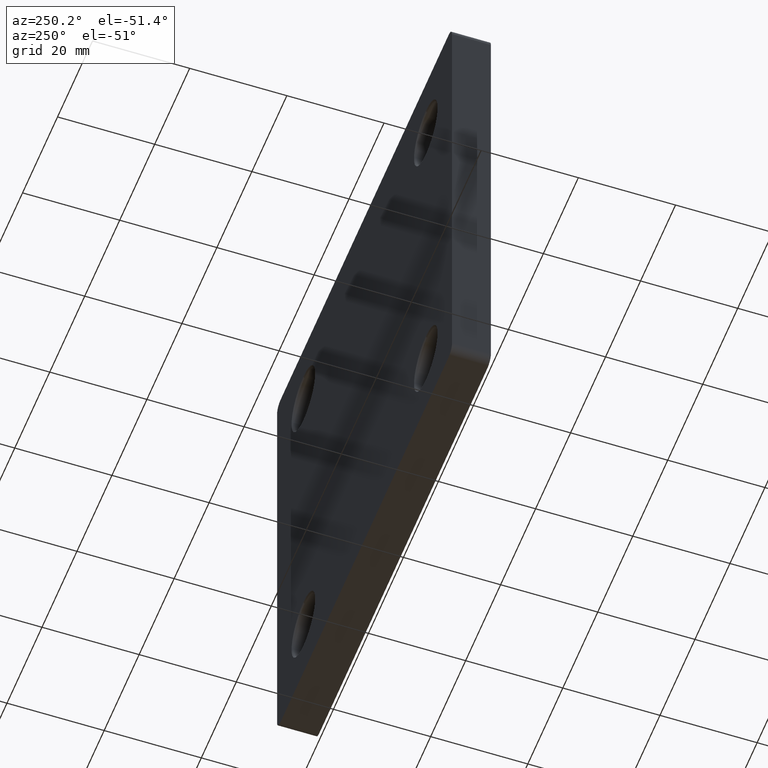
[diagram: clean part render]
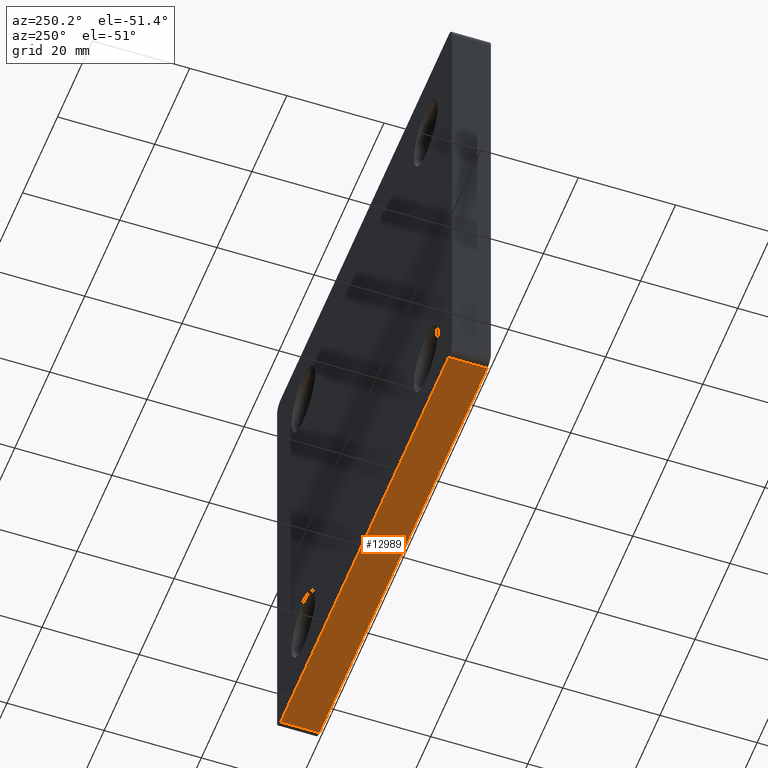
[diagram: same view with one face highlighted and labeled with its STEP entity id]
A machine part, auxiliary view. The second image highlights one B-rep face of the part: STEP entity #12989.
In plain terms, the highlighted planar face has unit normal (0, -0, 1).
Its self-contained STEP definition (entity closure, byte-faithful):
#538 = EDGE_LOOP ( 'NONE', ( #2620, #8491, #10556, #3791 ) ) ;
#710 = CARTESIAN_POINT ( 'NONE',  ( -50.00000000000000000, 8.000000000000000000, -49.99999999999998579 ) ) ;
#1427 = CARTESIAN_POINT ( 'NONE',  ( -48.00000000000000000, 0.000000000000000000, -49.99999999999998579 ) ) ;
#1479 = LINE ( 'NONE', #710, #9286 ) ;
#2046 = VERTEX_POINT ( 'NONE', #7930 ) ;
#2337 = VERTEX_POINT ( 'NONE', #1427 ) ;
#2582 = CARTESIAN_POINT ( 'NONE',  ( -48.00000000000000000, 8.000000000000000000, -49.99999999999998579 ) ) ;
#2620 = ORIENTED_EDGE ( 'NONE', *, *, #4820, .F. ) ;
#2638 = CARTESIAN_POINT ( 'NONE',  ( -50.00000000000000000, 8.000000000000000000, -49.99999999999998579 ) ) ;
#2743 = VERTEX_POINT ( 'NONE', #7718 ) ;
#2862 = LINE ( 'NONE', #11033, #12279 ) ;
#3111 = AXIS2_PLACEMENT_3D ( 'NONE', #2638, #9852, #5735 ) ;
#3273 = DIRECTION ( 'NONE',  ( -1.000000000000000000, -0.000000000000000000, 6.938893903907229610E-17 ) ) ;
#3791 = ORIENTED_EDGE ( 'NONE', *, *, #5125, .T. ) ;
#3846 = LINE ( 'NONE', #11446, #5121 ) ;
#4820 = EDGE_CURVE ( 'NONE', #2743, #8709, #1479, .T. ) ;
#4855 = DIRECTION ( 'NONE',  ( -1.000000000000000000, -0.000000000000000000, 6.938893903907229610E-17 ) ) ;
#5121 = VECTOR ( 'NONE', #12473, 1000.000000000000000 ) ;
#5125 = EDGE_CURVE ( 'NONE', #2337, #8709, #3846, .T. ) ;
#5714 = LINE ( 'NONE', #7447, #11478 ) ;
#5735 = DIRECTION ( 'NONE',  ( 1.000000000000000000, 0.000000000000000000, -6.938893903907229610E-17 ) ) ;
#5866 = PLANE ( 'NONE',  #3111 ) ;
#7383 = EDGE_CURVE ( 'NONE', #2743, #2046, #2862, .T. ) ;
#7447 = CARTESIAN_POINT ( 'NONE',  ( -50.00000000000000000, 0.000000000000000000, -49.99999999999998579 ) ) ;
#7718 = CARTESIAN_POINT ( 'NONE',  ( 47.99999999999995737, 8.000000000000000000, -49.99999999999999289 ) ) ;
#7930 = CARTESIAN_POINT ( 'NONE',  ( 47.99999999999995737, 0.000000000000000000, -49.99999999999999289 ) ) ;
#8120 = EDGE_CURVE ( 'NONE', #2046, #2337, #5714, .T. ) ;
#8491 = ORIENTED_EDGE ( 'NONE', *, *, #7383, .T. ) ;
#8709 = VERTEX_POINT ( 'NONE', #2582 ) ;
#9286 = VECTOR ( 'NONE', #4855, 1000.000000000000000 ) ;
#9852 = DIRECTION ( 'NONE',  ( 6.938893903907229610E-17, -0.000000000000000000, 1.000000000000000000 ) ) ;
#10556 = ORIENTED_EDGE ( 'NONE', *, *, #8120, .T. ) ;
#11033 = CARTESIAN_POINT ( 'NONE',  ( 47.99999999999998579, 8.000000000000000000, -49.99999999999999289 ) ) ;
#11064 = FACE_OUTER_BOUND ( 'NONE', #538, .T. ) ;
#11446 = CARTESIAN_POINT ( 'NONE',  ( -48.00000000000000000, 8.000000000000000000, -49.99999999999998579 ) ) ;
#11478 = VECTOR ( 'NONE', #3273, 1000.000000000000000 ) ;
#12279 = VECTOR ( 'NONE', #13031, 1000.000000000000000 ) ;
#12473 = DIRECTION ( 'NONE',  ( -0.000000000000000000, 1.000000000000000000, -0.000000000000000000 ) ) ;
#12989 = ADVANCED_FACE ( 'NONE', ( #11064 ), #5866, .F. ) ;
#13031 = DIRECTION ( 'NONE',  ( 0.000000000000000000, -1.000000000000000000, 0.000000000000000000 ) ) ;